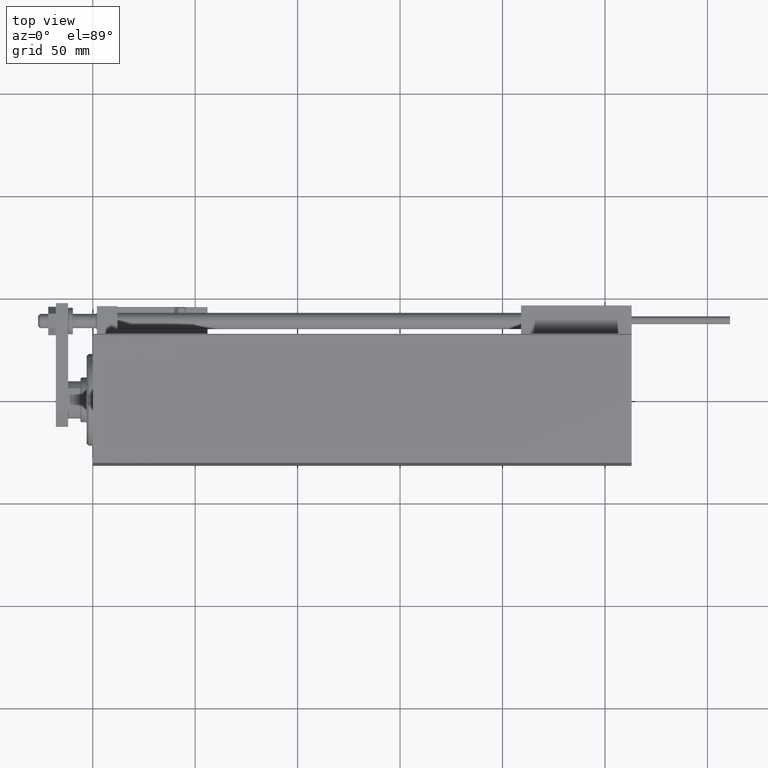
[diagram: clean part render]
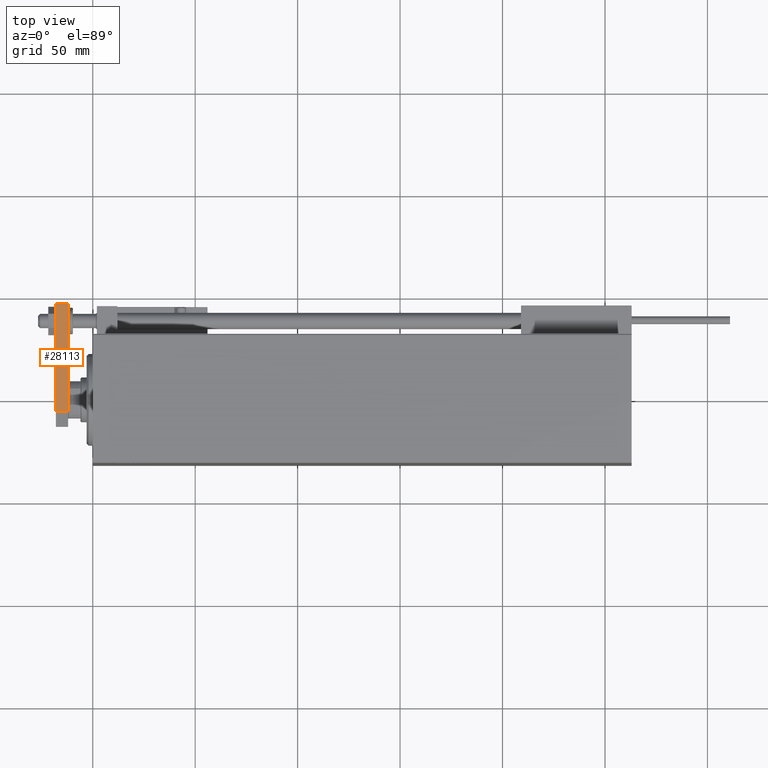
[diagram: same view with one face highlighted and labeled with its STEP entity id]
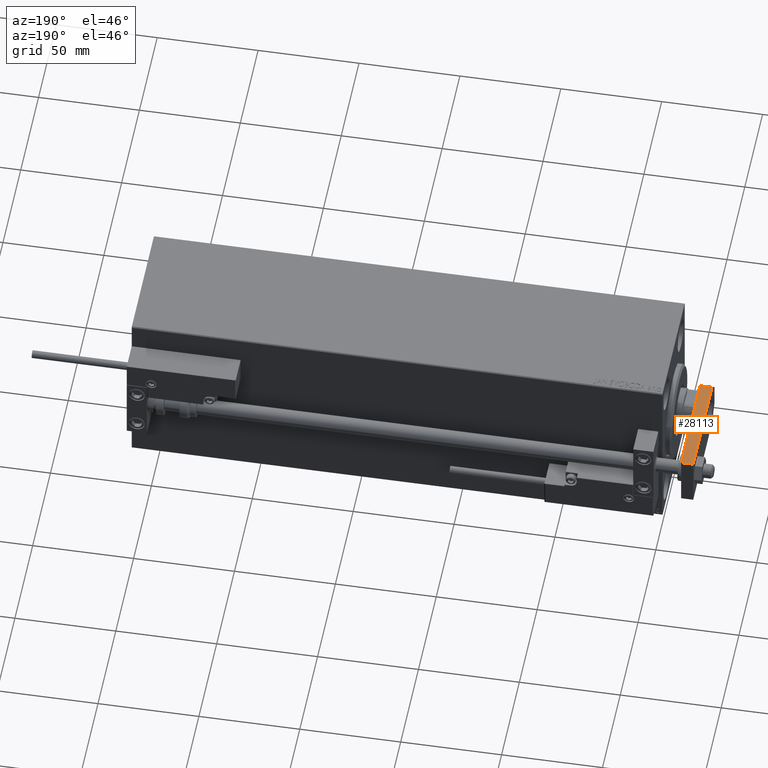
[diagram: same view with one face highlighted and labeled with its STEP entity id]
A machine part, top view. The second image highlights one B-rep face of the part: STEP entity #28113.
A second angle (auxiliary view) of the same face is appended — the face is thin or edge-on in the first view.
In plain terms, the highlighted planar face has unit normal (0, 0, -1).
Its self-contained STEP definition (entity closure, byte-faithful):
#224 = VECTOR ( 'NONE', #13534, 1000.000000000000000 ) ;
#729 = AXIS2_PLACEMENT_3D ( 'NONE', #12740, #39093, #4890 ) ;
#1166 = CARTESIAN_POINT ( 'NONE',  ( 12.50000000000000355, 60.00000000000000000, 6.000000000000000000 ) ) ;
#2537 = CARTESIAN_POINT ( 'NONE',  ( 12.50000000000000355, 60.00000000000000000, 0.000000000000000000 ) ) ;
#4368 = DIRECTION ( 'NONE',  ( 0.000000000000000000, 1.000000000000000000, 0.000000000000000000 ) ) ;
#4890 = DIRECTION ( 'NONE',  ( 0.000000000000000000, 0.000000000000000000, 1.000000000000000000 ) ) ;
#4934 = VECTOR ( 'NONE', #28515, 1000.000000000000000 ) ;
#6681 = DIRECTION ( 'NONE',  ( 0.000000000000000000, 0.000000000000000000, -1.000000000000000000 ) ) ;
#6878 = VERTEX_POINT ( 'NONE', #29075 ) ;
#7944 = PLANE ( 'NONE',  #729 ) ;
#12740 = CARTESIAN_POINT ( 'NONE',  ( 12.50000000000000355, 4.814824860968089633E-32, 6.000000000000000000 ) ) ;
#13534 = DIRECTION ( 'NONE',  ( 0.000000000000000000, 1.000000000000000000, 0.000000000000000000 ) ) ;
#16748 = CARTESIAN_POINT ( 'NONE',  ( 12.50000000000000355, 4.814824860968089633E-32, 0.000000000000000000 ) ) ;
#16795 = EDGE_CURVE ( 'NONE', #6878, #43255, #36133, .T. ) ;
#16996 = LINE ( 'NONE', #16748, #40618 ) ;
#18546 = CARTESIAN_POINT ( 'NONE',  ( 12.50000000000000355, 7.000000000000006217, 6.000000000000000000 ) ) ;
#20279 = EDGE_CURVE ( 'NONE', #24031, #43255, #16996, .T. ) ;
#20552 = ORIENTED_EDGE ( 'NONE', *, *, #21303, .F. ) ;
#21227 = ORIENTED_EDGE ( 'NONE', *, *, #36769, .T. ) ;
#21303 = EDGE_CURVE ( 'NONE', #25657, #6878, #44418, .T. ) ;
#21404 = CARTESIAN_POINT ( 'NONE',  ( 12.50000000000000355, 7.000000000000006217, 6.000000000000000000 ) ) ;
#24031 = VERTEX_POINT ( 'NONE', #37690 ) ;
#25502 = ORIENTED_EDGE ( 'NONE', *, *, #16795, .F. ) ;
#25657 = VERTEX_POINT ( 'NONE', #21404 ) ;
#27421 = FACE_OUTER_BOUND ( 'NONE', #29103, .T. ) ;
#28113 = ADVANCED_FACE ( 'NONE', ( #27421 ), #7944, .F. ) ;
#28515 = DIRECTION ( 'NONE',  ( -0.000000000000000000, -0.000000000000000000, -1.000000000000000000 ) ) ;
#29075 = CARTESIAN_POINT ( 'NONE',  ( 12.50000000000000355, 60.00000000000000000, 6.000000000000000000 ) ) ;
#29103 = EDGE_LOOP ( 'NONE', ( #20552, #21227, #46708, #25502 ) ) ;
#29211 = CARTESIAN_POINT ( 'NONE',  ( 12.50000000000000355, 4.814824860968089633E-32, 6.000000000000000000 ) ) ;
#30202 = LINE ( 'NONE', #18546, #46173 ) ;
#36133 = LINE ( 'NONE', #1166, #4934 ) ;
#36769 = EDGE_CURVE ( 'NONE', #25657, #24031, #30202, .T. ) ;
#37690 = CARTESIAN_POINT ( 'NONE',  ( 12.50000000000000355, 7.000000000000006217, 0.000000000000000000 ) ) ;
#39093 = DIRECTION ( 'NONE',  ( -1.000000000000000000, 0.000000000000000000, 0.000000000000000000 ) ) ;
#40618 = VECTOR ( 'NONE', #4368, 1000.000000000000000 ) ;
#43255 = VERTEX_POINT ( 'NONE', #2537 ) ;
#44418 = LINE ( 'NONE', #29211, #224 ) ;
#46173 = VECTOR ( 'NONE', #6681, 1000.000000000000000 ) ;
#46708 = ORIENTED_EDGE ( 'NONE', *, *, #20279, .T. ) ;